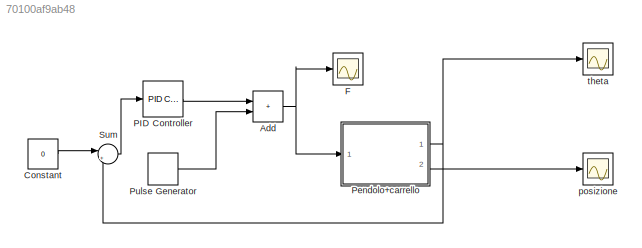
MODEL slx_70100af9ab48
KIND model
CONFIG AbsTol = auto
CONFIG EnableMultiTasking = off
CONFIG FixedStep = auto
CONFIG MaxStep = auto
CONFIG MinStep = auto
CONFIG RelTol = 1e-3
CONFIG SampleTimeConstraint = Unconstrained
CONFIG SolverName = VariableStepAuto
CONFIG StartTime = 0.0
CONFIG StopTime = 10
BLOCK [Sum] Add
  IconShape = rectangular
  Ports = [2, 1]
BLOCK [Constant] Constant
  Value = 0
BLOCK [Scope] F
  Floating = off
  NumInputPorts = 1
  Ports = [1]
  ScopeSpecificationString = Simulink.scopes.TimeScopeBlockCfg('CurrentConfiguration', extmgr.ConfigurationSet(extmgr.Configuration('Core','General UI',true),extmgr.Configuration('Core','Source UI',true),extmgr.Configuration('Sources','WiredSimulink',true,'DataLoggingVariableName','ScopeData1'),extmgr.Configuration('Visuals','Time Domain',true,'SerializedDisplays',{struct('MinYLimReal','-740.06232','MaxYLimReal','272.37109','...<+1376ch>
BLOCK [Reference] PID Controller  REF=pid_lib/PID Controller
  Ports = [1, 1]
  SourceBlock = pid_lib/PID Controller
  SourceProductBaseCode = SL
  SourceType = PID 1dof
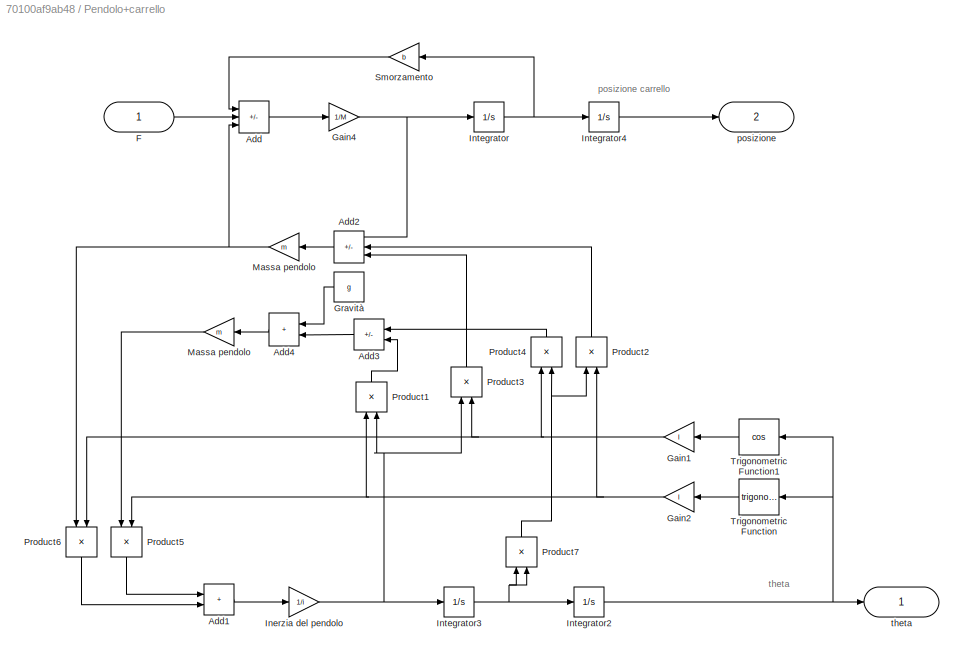
BLOCK [SubSystem] Pendolo+carrello 
  Ports = [1, 2]
  RequestExecContextInheritance = off
BLOCK [Sum] Pendolo+carrello /Add
  IconShape = rectangular
  Inputs = -+-
  Ports = [3, 1]
BLOCK [Sum] Pendolo+carrello /Add1
  IconShape = rectangular
  Ports = [2, 1]
BLOCK [Sum] Pendolo+carrello /Add2
  IconShape = rectangular
  Inputs = ++-
  Ports = [3, 1]
BLOCK [Sum] Pendolo+carrello /Add3
  IconShape = rectangular
  Inputs = --
  Ports = [2, 1]
BLOCK [Sum] Pendolo+carrello /Add4
  IconShape = rectangular
  Ports = [2, 1]
BLOCK [Inport] Pendolo+carrello /F
BLOCK [Gain] Pendolo+carrello /Gain1
  Gain = l
  NameLocation = top
BLOCK [Gain] Pendolo+carrello /Gain2
  Gain = l
  NameLocation = top
BLOCK [Gain] Pendolo+carrello /Gain4
  Gain = 1/M
BLOCK [Constant] Pendolo+carrello /Gravità
  Value = g
BLOCK [Gain] Pendolo+carrello /Inerzia del pendolo
  Gain = 1/i
BLOCK [Integrator] Pendolo+carrello /Integrator
  InitialCondition = velocita0
  Ports = [1, 1]
BLOCK [Integrator] Pendolo+carrello /Integrator2
  InitialCondition = theta0
  Ports = [1, 1]
BLOCK [Integrator] Pendolo+carrello /Integrator3
  InitialCondition = w0
  Ports = [1, 1]
BLOCK [Integrator] Pendolo+carrello /Integrator4
  InitialCondition = p0
  Ports = [1, 1]
BLOCK [Gain] Pendolo+carrello /Massa pendolo
  Gain = m
BLOCK [Gain] Pendolo+carrello /Massa pendolo 
  Gain = m
BLOCK [Product] Pendolo+carrello /Product1
  NameLocation = right
  Ports = [2, 1]
BLOCK [Product] Pendolo+carrello /Product2
  NameLocation = right
  Ports = [2, 1]
BLOCK [Product] Pendolo+carrello /Product3
  NameLocation = right
  Ports = [2, 1]
BLOCK [Product] Pendolo+carrello /Product4
  NameLocation = right
  Ports = [2, 1]
BLOCK [Product] Pendolo+carrello /Product5
  NameLocation = left
  Ports = [2, 1]
BLOCK [Product] Pendolo+carrello /Product6
  NameLocation = left
  Ports = [2, 1]
BLOCK [Product] Pendolo+carrello /Product7
  NameLocation = right
  Ports = [2, 1]
BLOCK [Gain] Pendolo+carrello /Smorzamento
  Gain = b
BLOCK [Trigonometry] Pendolo+carrello /Trigonometric Function
  NameLocation = top
  Ports = [1, 1]
BLOCK [Trigonometry] Pendolo+carrello /Trigonometric Function1
  NameLocation = top
  Operator = cos
  Ports = [1, 1]
BLOCK [Outport] Pendolo+carrello /posizione
  Port = 2
BLOCK [Outport] Pendolo+carrello /theta
BLOCK [DiscretePulseGenerator] Pulse Generator
  Period = 10
  Ports = [0, 1]
  PulseType = Time based
  PulseWidth = 5
BLOCK [Sum] Sum
  Inputs = |+-
  Ports = [2, 1]
BLOCK [Scope] posizione
  Floating = off
  NumInputPorts = 1
  Ports = [1]
  ScopeSpecificationString = Simulink.scopes.TimeScopeBlockCfg('CurrentConfiguration', extmgr.ConfigurationSet(extmgr.Configuration('Core','General UI',true),extmgr.Configuration('Core','Source UI',true),extmgr.Configuration('Sources','WiredSimulink',true),extmgr.Configuration('Visuals','Time Domain',true,'SerializedDisplays',{struct('MinYLimReal','-8.85964','MaxYLimReal','0.9844','YLabelReal','','MinYLimMag','0.00000','MaxYL...<+1337ch>
BLOCK [Scope] theta
  Floating = off
  NumInputPorts = 1
  Ports = [1]
  ScopeSpecificationString = Simulink.scopes.TimeScopeBlockCfg('CurrentConfiguration', extmgr.ConfigurationSet(extmgr.Configuration('Core','General UI',true),extmgr.Configuration('Core','Source UI',true),extmgr.Configuration('Sources','WiredSimulink',true,'DataLoggingVariableName','ScopeData1'),extmgr.Configuration('Visuals','Time Domain',true,'SerializedDisplays',{struct('MinYLimReal','-0.08219','MaxYLimReal','0.34778','YLab...<+1378ch>
ANNOTATION Pendolo+carrello : posizione carrello
ANNOTATION Pendolo+carrello : theta
NET Add:1 -> F:1, Pendolo+carrello :1
LINE Constant:1 -> Sum:1
LINE PID Controller:1 -> Add:1
LINE Pendolo+carrello /Add1:1 -> Pendolo+carrello /Inerzia del pendolo:1
LINE Pendolo+carrello /Add2:1 -> Pendolo+carrello /Massa pendolo:1
LINE Pendolo+carrello /Add3:1 -> Pendolo+carrello /Add4:2
LINE Pendolo+carrello /Add4:1 -> Pendolo+carrello /Massa pendolo :1
LINE Pendolo+carrello /Add:1 -> Pendolo+carrello /Gain4:1
LINE Pendolo+carrello /F:1 -> Pendolo+carrello /Add:2
NET Pendolo+carrello /Gain1:1 -> Pendolo+carrello /Product3:2, Pendolo+carrello /Product4:1, Pendolo+carrello /Product6:2
NET Pendolo+carrello /Gain2:1 -> Pendolo+carrello /Product1:1, Pendolo+carrello /Product2:2, Pendolo+carrello /Product5:2
NET Pendolo+carrello /Gain4:1 -> Pendolo+carrello /Add2:1, Pendolo+carrello /Integrator:1
LINE Pendolo+carrello /Gravità:1 -> Pendolo+carrello /Add4:1
NET Pendolo+carrello /Inerzia del pendolo:1 -> Pendolo+carrello /Integrator3:1, Pendolo+carrello /Product1:2, Pendolo+carrello /Product3:1
NET Pendolo+carrello /Integrator2:1 -> Pendolo+carrello /Trigonometric Function1:1, Pendolo+carrello /Trigonometric Function:1, Pendolo+carrello /theta:1
NET Pendolo+carrello /Integrator3:1 -> Pendolo+carrello /Integrator2:1, Pendolo+carrello /Product7:1, Pendolo+carrello /Product7:2
LINE Pendolo+carrello /Integrator4:1 -> Pendolo+carrello /posizione:1
NET Pendolo+carrello /Integrator:1 -> Pendolo+carrello /Integrator4:1, Pendolo+carrello /Smorzamento:1
LINE Pendolo+carrello /Massa pendolo :1 -> Pendolo+carrello /Product5:1
NET Pendolo+carrello /Massa pendolo:1 -> Pendolo+carrello /Add:3, Pendolo+carrello /Product6:1
LINE Pendolo+carrello /Product1:1 -> Pendolo+carrello /Add3:2
LINE Pendolo+carrello /Product2:1 -> Pendolo+carrello /Add2:2
LINE Pendolo+carrello /Product3:1 -> Pendolo+carrello /Add2:3
LINE Pendolo+carrello /Product4:1 -> Pendolo+carrello /Add3:1
LINE Pendolo+carrello /Product5:1 -> Pendolo+carrello /Add1:1
LINE Pendolo+carrello /Product6:1 -> Pendolo+carrello /Add1:2
NET Pendolo+carrello /Product7:1 -> Pendolo+carrello /Product2:1, Pendolo+carrello /Product4:2
LINE Pendolo+carrello /Smorzamento:1 -> Pendolo+carrello /Add:1
LINE Pendolo+carrello /Trigonometric Function1:1 -> Pendolo+carrello /Gain1:1
LINE Pendolo+carrello /Trigonometric Function:1 -> Pendolo+carrello /Gain2:1
NET Pendolo+carrello :1 -> Sum:2, theta:1
LINE Pendolo+carrello :2 -> posizione:1
LINE Pulse Generator:1 -> Add:2
LINE Sum:1 -> PID Controller:1
note: NET lines group one-source signal fan-out (src -> all destinations, sorted); 1:1 wires keep LINE
